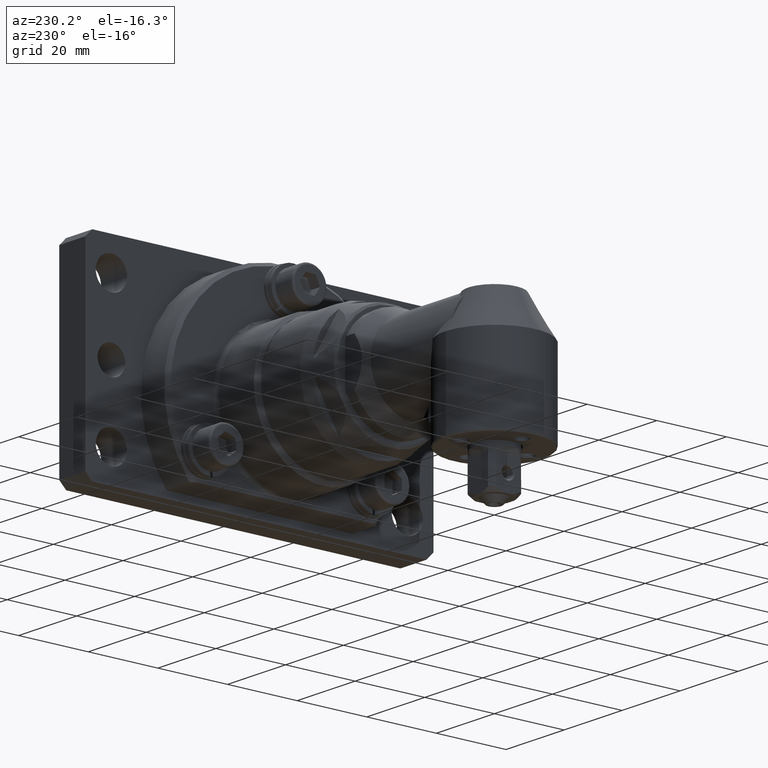
[diagram: clean part render]
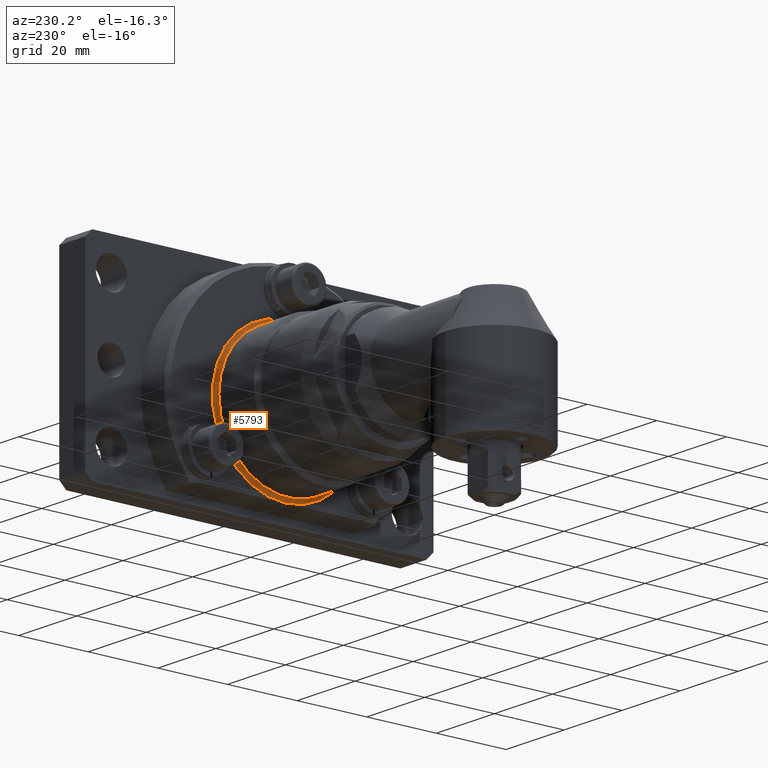
[diagram: same view with one face highlighted and labeled with its STEP entity id]
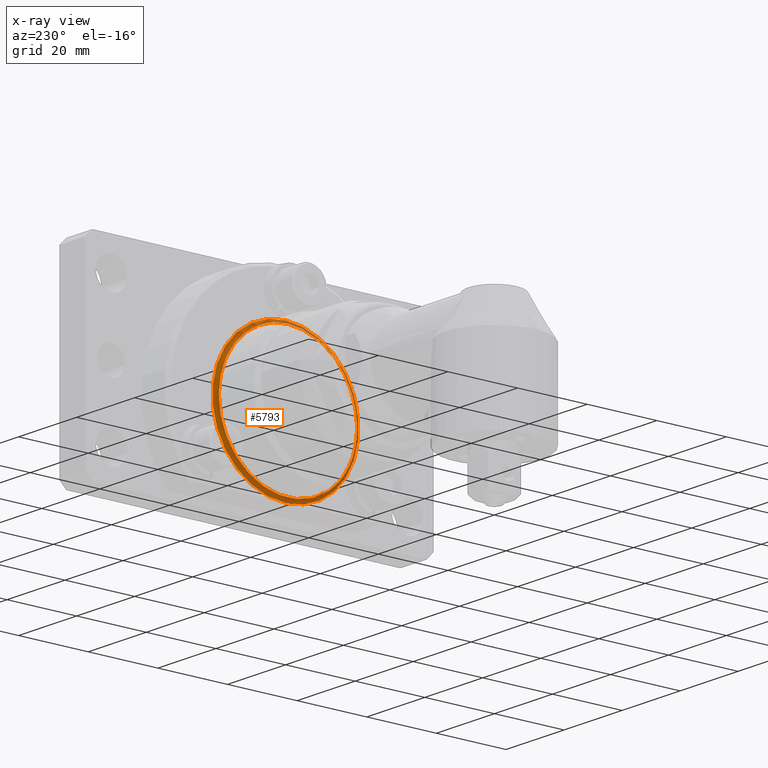
[diagram: x-ray of the same camera — body ghosted, the highlighted face saturated]
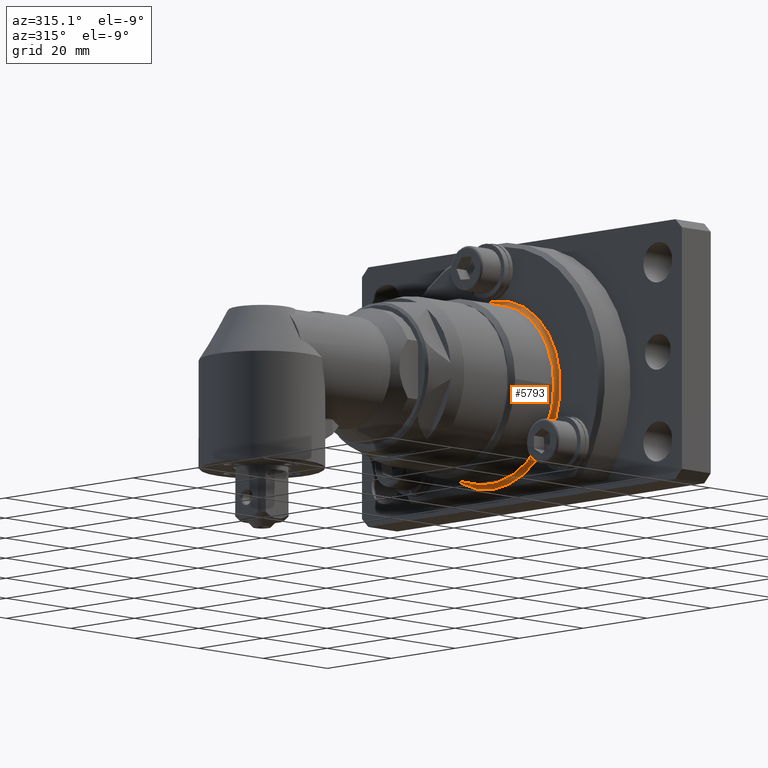
[diagram: same view with one face highlighted and labeled with its STEP entity id]
A machine part, auxiliary view. The second image highlights one B-rep face of the part: STEP entity #5793.
The next image is the same camera in x-ray: the body ghosted, the highlighted face saturated — about 17% of this face is hidden behind the body in this view.
A second angle (auxiliary view) of the same face is appended — the face is thin or edge-on in the first view.
In plain terms, the highlighted toroidal blend (fillet) surface has major radius 21 mm and minor (blend) radius 1 mm.
Its self-contained STEP definition (entity closure, byte-faithful):
#181=TOROIDAL_SURFACE('',#6498,21.,1.);
#1347=FACE_OUTER_BOUND('',#1725,.T.);
#1725=EDGE_LOOP('',(#5184,#5185,#5186,#5187,#5188,#5189,#5190));
#1876=CIRCLE('',#6047,21.);
#1877=CIRCLE('',#6048,21.);
#2120=CIRCLE('',#6499,20.);
#2121=CIRCLE('',#6500,1.);
#2122=CIRCLE('',#6501,20.);
#2123=CIRCLE('',#6502,20.);
#2301=VERTEX_POINT('',#8818);
#2302=VERTEX_POINT('',#8820);
#2695=VERTEX_POINT('',#10870);
#2696=VERTEX_POINT('',#10871);
#2697=VERTEX_POINT('',#10874);
#2953=EDGE_CURVE('',#2302,#2301,#1876,.T.);
#2954=EDGE_CURVE('',#2301,#2302,#1877,.T.);
#3541=EDGE_CURVE('',#2695,#2696,#2120,.T.);
#3542=EDGE_CURVE('',#2696,#2302,#2121,.T.);
#3543=EDGE_CURVE('',#2696,#2697,#2122,.T.);
#3544=EDGE_CURVE('',#2697,#2695,#2123,.T.);
#5184=ORIENTED_EDGE('',*,*,#3541,.T.);
#5185=ORIENTED_EDGE('',*,*,#3542,.T.);
#5186=ORIENTED_EDGE('',*,*,#2953,.T.);
#5187=ORIENTED_EDGE('',*,*,#2954,.T.);
#5188=ORIENTED_EDGE('',*,*,#3542,.F.);
#5189=ORIENTED_EDGE('',*,*,#3543,.T.);
#5190=ORIENTED_EDGE('',*,*,#3544,.T.);
#5793=ADVANCED_FACE('',(#1347),#181,.F.);
#6047=AXIS2_PLACEMENT_3D('',#8821,#7028,#7029);
#6048=AXIS2_PLACEMENT_3D('',#8822,#7030,#7031);
#6498=AXIS2_PLACEMENT_3D('',#10869,#8180,#8181);
#6499=AXIS2_PLACEMENT_3D('',#10872,#8182,#8183);
#6500=AXIS2_PLACEMENT_3D('',#10873,#8184,#8185);
#6501=AXIS2_PLACEMENT_3D('',#10875,#8186,#8187);
#6502=AXIS2_PLACEMENT_3D('',#10876,#8188,#8189);
#7028=DIRECTION('center_axis',(-1.,-2.10399244551776E-17,1.35308431126191E-15));
#7029=DIRECTION('ref_axis',(2.10399244551779E-17,-1.,1.83697019872103E-16));
#7030=DIRECTION('center_axis',(-1.,-2.10399244551776E-17,1.35308431126191E-15));
#7031=DIRECTION('ref_axis',(2.10399244551779E-17,-1.,1.83697019872103E-16));
#8180=DIRECTION('center_axis',(1.,2.10399244551776E-17,-1.35308431126191E-15));
#8181=DIRECTION('ref_axis',(-1.29189588320018E-15,-7.17146277473647E-32,
-1.));
#8182=DIRECTION('center_axis',(1.,2.10399244551776E-17,-1.35308431126191E-15));
#8183=DIRECTION('ref_axis',(2.10399244551779E-17,-1.,1.83697019872103E-16));
#8184=DIRECTION('center_axis',(2.10399244551774E-17,-1.,-1.22464679914735E-16));
#8185=DIRECTION('ref_axis',(1.21115239050017E-15,-1.22464679914735E-16,
1.));
#8186=DIRECTION('center_axis',(1.,2.10399244551776E-17,-1.35308431126191E-15));
#8187=DIRECTION('ref_axis',(2.10399244551779E-17,-1.,1.83697019872103E-16));
#8188=DIRECTION('center_axis',(1.,2.10399244551776E-17,-1.35308431126191E-15));
#8189=DIRECTION('ref_axis',(2.10399244551779E-17,-1.,1.83697019872103E-16));
#8818=CARTESIAN_POINT('',(72.,1.19573125617387E-14,-21.0000000000001));
#8820=CARTESIAN_POINT('',(72.,4.94466218502867E-15,20.9999999999999));
#8821=CARTESIAN_POINT('Origin',(72.,7.51642046323811E-15,-9.74220704108575E-14));
#8822=CARTESIAN_POINT('Origin',(72.,7.51642046323811E-15,-9.74220704108575E-14));
#10869=CARTESIAN_POINT('Origin',(71.,7.49538053878293E-15,-9.60689860995956E-14));
#10870=CARTESIAN_POINT('',(71.,20.,-9.7293632898743E-14));
#10871=CARTESIAN_POINT('',(71.,5.04608694048823E-15,19.9999999999999));
#10872=CARTESIAN_POINT('Origin',(71.,7.49538053878293E-15,-9.60689860995956E-14));
#10873=CARTESIAN_POINT('Origin',(71.,4.92362226057349E-15,20.9999999999999));
#10874=CARTESIAN_POINT('',(71.,-20.,-9.85182796978903E-14));
#10875=CARTESIAN_POINT('Origin',(71.,7.49538053878293E-15,-9.60689860995956E-14));
#10876=CARTESIAN_POINT('Origin',(71.,7.49538053878293E-15,-9.60689860995956E-14));